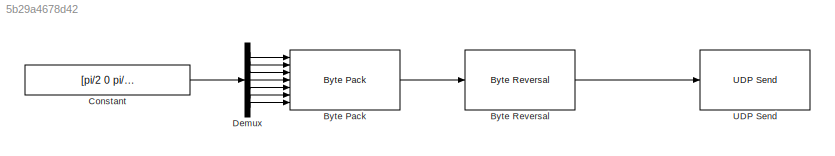
MODEL slx_5b29a4678d42
KIND model
CONFIG InitFcn = DT = 0.01;
BLOCK [Reference] Byte Pack  REF=etargetslib/Byte Pack
  Ports = [7, 1]
  SourceBlock = etargetslib/Byte Pack
  SourceType = Byte pack
  byteAlign = 1
  datatypes = {'double' 'double' 'double' 'double' 'double' 'double' 'double'}
BLOCK [Reference] Byte Reversal  REF=etargetslib/Byte Reversal
  Ports = [1, 1]
  SourceBlock = etargetslib/Byte Reversal
  SourceType = Byte Reversal
  numInp = 1
BLOCK [Constant] Constant
  SampleTime = DT
  Value = [pi/2 0 pi/2 0 pi/2 0 0]'
  VectorParams1D = off
BLOCK [Demux] Demux
  DisplayOption = bar
  Outputs = 7
  Ports = [1, 7]
BLOCK [Reference] UDP Send  REF=dspnetwork/UDP Send
  Ports = [1]
  SourceBlock = dspnetwork/UDP Send
  SourceType = UDP Send
  blockPlatform = HOST
  localPort = -1
  localPortSource = Automatically determine
  localURL = '255.255.255.255'
  remotePort = 32000
  remoteURL = '127.0.0.1'
  sampletime = -1
  separateLengthPort = 0
LINE Byte Pack:1 -> Byte Reversal:1
LINE Byte Reversal:1 -> UDP Send:1
LINE Constant:1 -> Demux:1
LINE Demux:1 -> Byte Pack:1
LINE Demux:2 -> Byte Pack:2
LINE Demux:3 -> Byte Pack:3
LINE Demux:4 -> Byte Pack:4
LINE Demux:5 -> Byte Pack:5
LINE Demux:6 -> Byte Pack:6
LINE Demux:7 -> Byte Pack:7
